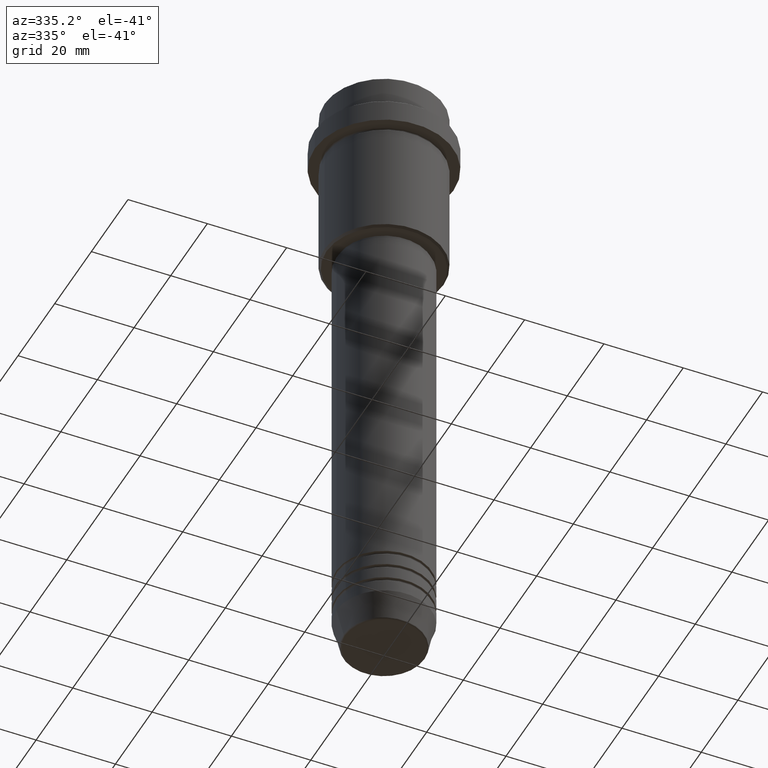
[diagram: clean part render]
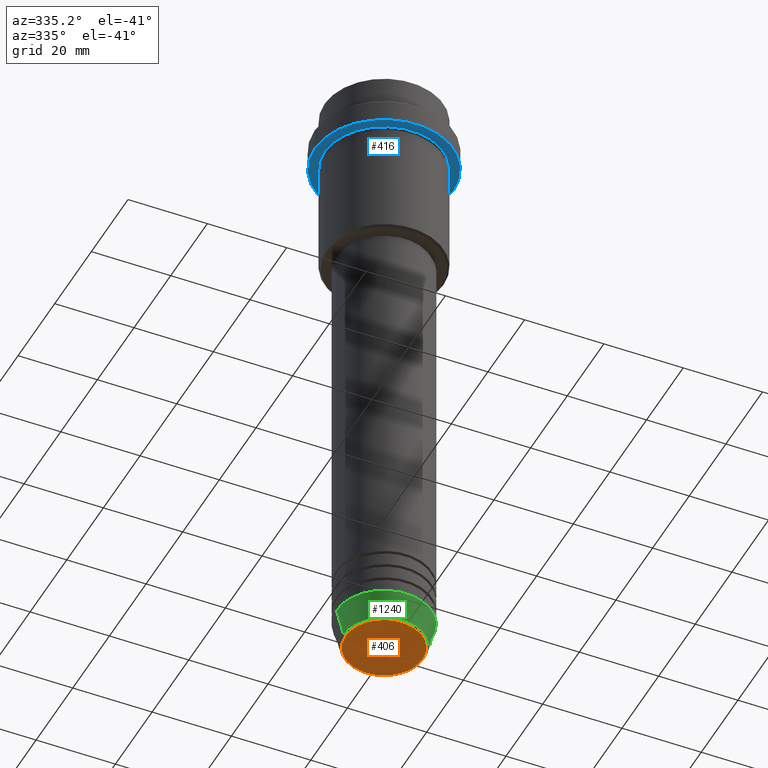
[diagram: same view with three faces highlighted in distinct colors, each labeled with its STEP entity id]
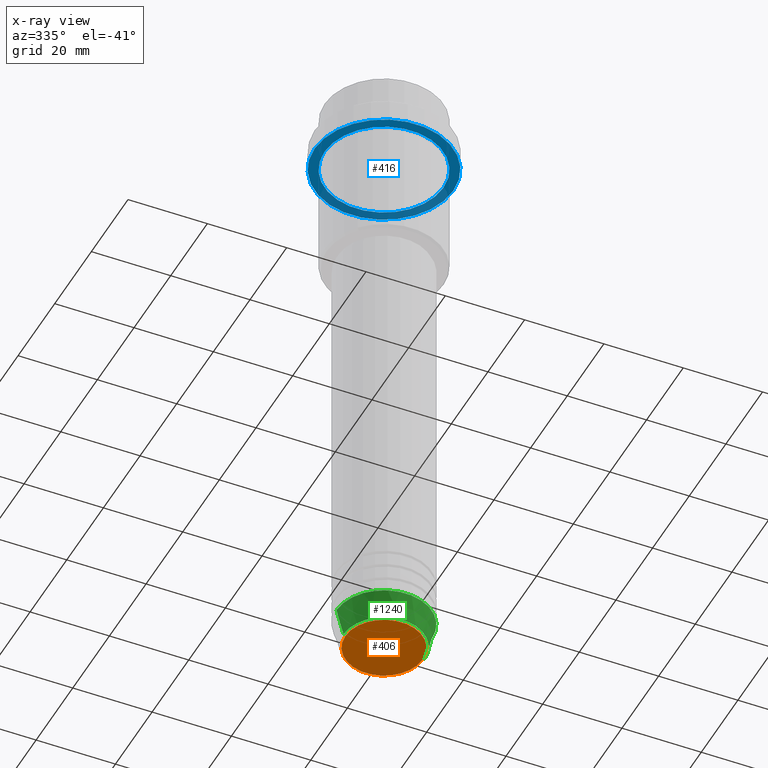
[diagram: x-ray of the same camera — body ghosted, the three highlighted faces saturated]
A machine part, auxiliary view with three faces highlighted in distinct colors.
The next image is the same camera in x-ray (body ghosted, the three faces saturated) — at least one of them is partly hidden behind the body in this view.
Their STEP definitions:

[orange] entity #406 — the highlighted planar face has unit normal (0, -0, 1).
#37 = CARTESIAN_POINT ( 'NONE',  ( 0.000000000000000000, 0.000000000000000000, -159.9999999999999716 ) ) ;
#179 = DIRECTION ( 'NONE',  ( 0.000000000000000000, 0.000000000000000000, -1.000000000000000000 ) ) ;
#216 = CIRCLE ( 'NONE', #981, 9.740692158992667160 ) ;
#226 = EDGE_CURVE ( 'NONE', #707, #400, #216, .T. ) ;
#233 = CARTESIAN_POINT ( 'NONE',  ( 0.000000000000000000, 0.000000000000000000, -159.9999999999999716 ) ) ;
#360 = PLANE ( 'NONE',  #861 ) ;
#400 = VERTEX_POINT ( 'NONE', #589 ) ;
#406 = ADVANCED_FACE ( 'NONE', ( #1345 ), #360, .F. ) ;
#429 = ORIENTED_EDGE ( 'NONE', *, *, #902, .T. ) ;
#524 = DIRECTION ( 'NONE',  ( 1.000000000000000000, 0.000000000000000000, 0.000000000000000000 ) ) ;
#548 = ORIENTED_EDGE ( 'NONE', *, *, #226, .T. ) ;
#569 = EDGE_LOOP ( 'NONE', ( #548, #429 ) ) ;
#575 = DIRECTION ( 'NONE',  ( 1.000000000000000000, 0.000000000000000000, 0.000000000000000000 ) ) ;
#589 = CARTESIAN_POINT ( 'NONE',  ( -9.740692158992667160, 1.222463696683475393E-15, -159.9999999999999716 ) ) ;
#636 = AXIS2_PLACEMENT_3D ( 'NONE', #233, #1216, #575 ) ;
#707 = VERTEX_POINT ( 'NONE', #873 ) ;
#730 = CARTESIAN_POINT ( 'NONE',  ( 0.000000000000000000, 0.000000000000000000, -159.9999999999999716 ) ) ;
#861 = AXIS2_PLACEMENT_3D ( 'NONE', #37, #1025, #1033 ) ;
#873 = CARTESIAN_POINT ( 'NONE',  ( 9.740692158992667160, 0.000000000000000000, -159.9999999999999716 ) ) ;
#902 = EDGE_CURVE ( 'NONE', #400, #707, #935, .T. ) ;
#935 = CIRCLE ( 'NONE', #636, 9.740692158992667160 ) ;
#981 = AXIS2_PLACEMENT_3D ( 'NONE', #730, #179, #524 ) ;
#1025 = DIRECTION ( 'NONE',  ( 0.000000000000000000, -0.000000000000000000, 1.000000000000000000 ) ) ;
#1033 = DIRECTION ( 'NONE',  ( 1.000000000000000000, 0.000000000000000000, 0.000000000000000000 ) ) ;
#1216 = DIRECTION ( 'NONE',  ( 0.000000000000000000, 0.000000000000000000, -1.000000000000000000 ) ) ;
#1345 = FACE_OUTER_BOUND ( 'NONE', #569, .T. ) ;

[blue] entity #416 — the highlighted planar face has unit normal (0, 0, -1).
#14 = CARTESIAN_POINT ( 'NONE',  ( 17.50000000000000000, 0.000000000000000000, -15.00000000000000000 ) ) ;
#16 = DIRECTION ( 'NONE',  ( -1.000000000000000000, 0.000000000000000000, -0.000000000000000000 ) ) ;
#80 = DIRECTION ( 'NONE',  ( -0.000000000000000000, -0.000000000000000000, 1.000000000000000000 ) ) ;
#95 = AXIS2_PLACEMENT_3D ( 'NONE', #314, #80, #507 ) ;
#128 = EDGE_CURVE ( 'NONE', #844, #921, #1266, .T. ) ;
#173 = CARTESIAN_POINT ( 'NONE',  ( -14.99999999999999467, 0.000000000000000000, -15.00000000000000000 ) ) ;
#206 = DIRECTION ( 'NONE',  ( 1.000000000000000000, 0.000000000000000000, 0.000000000000000000 ) ) ;
#221 = CIRCLE ( 'NONE', #839, 14.99999999999999467 ) ;
#236 = CIRCLE ( 'NONE', #95, 14.99999999999999467 ) ;
#245 = ORIENTED_EDGE ( 'NONE', *, *, #128, .F. ) ;
#268 = PLANE ( 'NONE',  #610 ) ;
#270 = DIRECTION ( 'NONE',  ( -1.000000000000000000, 0.000000000000000000, 0.000000000000000000 ) ) ;
#314 = CARTESIAN_POINT ( 'NONE',  ( 0.000000000000000000, 0.000000000000000000, -15.00000000000000000 ) ) ;
#370 = FACE_BOUND ( 'NONE', #582, .T. ) ;
#416 = ADVANCED_FACE ( 'NONE', ( #370, #820 ), #268, .T. ) ;
#460 = EDGE_CURVE ( 'NONE', #1009, #1255, #236, .T. ) ;
#492 = CIRCLE ( 'NONE', #822, 17.50000000000000000 ) ;
#507 = DIRECTION ( 'NONE',  ( -1.000000000000000000, 0.000000000000000000, 0.000000000000000000 ) ) ;
#568 = CARTESIAN_POINT ( 'NONE',  ( -17.50000000000000000, 2.143131898507868248E-15, -15.00000000000000000 ) ) ;
#582 = EDGE_LOOP ( 'NONE', ( #1375, #1339 ) ) ;
#606 = DIRECTION ( 'NONE',  ( -0.000000000000000000, -0.000000000000000000, 1.000000000000000000 ) ) ;
#610 = AXIS2_PLACEMENT_3D ( 'NONE', #1108, #684, #16 ) ;
#684 = DIRECTION ( 'NONE',  ( 0.000000000000000000, 0.000000000000000000, -1.000000000000000000 ) ) ;
#688 = DIRECTION ( 'NONE',  ( 1.000000000000000000, 0.000000000000000000, 0.000000000000000000 ) ) ;
#722 = AXIS2_PLACEMENT_3D ( 'NONE', #968, #876, #206 ) ;
#820 = FACE_OUTER_BOUND ( 'NONE', #1327, .T. ) ;
#822 = AXIS2_PLACEMENT_3D ( 'NONE', #1329, #1319, #688 ) ;
#839 = AXIS2_PLACEMENT_3D ( 'NONE', #1349, #606, #270 ) ;
#844 = VERTEX_POINT ( 'NONE', #14 ) ;
#876 = DIRECTION ( 'NONE',  ( -0.000000000000000000, -0.000000000000000000, 1.000000000000000000 ) ) ;
#921 = VERTEX_POINT ( 'NONE', #568 ) ;
#929 = EDGE_CURVE ( 'NONE', #921, #844, #492, .T. ) ;
#931 = ORIENTED_EDGE ( 'NONE', *, *, #929, .F. ) ;
#968 = CARTESIAN_POINT ( 'NONE',  ( 0.000000000000000000, 0.000000000000000000, -15.00000000000000000 ) ) ;
#1009 = VERTEX_POINT ( 'NONE', #1241 ) ;
#1108 = CARTESIAN_POINT ( 'NONE',  ( 0.000000000000000000, 17.50000000000000000, -15.00000000000000000 ) ) ;
#1113 = EDGE_CURVE ( 'NONE', #1255, #1009, #221, .T. ) ;
#1241 = CARTESIAN_POINT ( 'NONE',  ( 14.99999999999999467, 1.836970198721029194E-15, -15.00000000000000000 ) ) ;
#1255 = VERTEX_POINT ( 'NONE', #173 ) ;
#1266 = CIRCLE ( 'NONE', #722, 17.50000000000000000 ) ;
#1319 = DIRECTION ( 'NONE',  ( -0.000000000000000000, -0.000000000000000000, 1.000000000000000000 ) ) ;
#1327 = EDGE_LOOP ( 'NONE', ( #245, #931 ) ) ;
#1329 = CARTESIAN_POINT ( 'NONE',  ( 0.000000000000000000, 0.000000000000000000, -15.00000000000000000 ) ) ;
#1339 = ORIENTED_EDGE ( 'NONE', *, *, #460, .T. ) ;
#1349 = CARTESIAN_POINT ( 'NONE',  ( 0.000000000000000000, 0.000000000000000000, -15.00000000000000000 ) ) ;
#1375 = ORIENTED_EDGE ( 'NONE', *, *, #1113, .T. ) ;

[green] entity #1240 — the highlighted conical surface has half-angle 15 deg.
#111 = CARTESIAN_POINT ( 'NONE',  ( -12.00000000000000000, 1.469576158976823947E-15, -153.0000000000000000 ) ) ;
#134 = DIRECTION ( 'NONE',  ( 1.000000000000000000, 0.000000000000000000, 0.000000000000000000 ) ) ;
#145 = ORIENTED_EDGE ( 'NONE', *, *, #1168, .F. ) ;
#161 = DIRECTION ( 'NONE',  ( 1.000000000000000000, 0.000000000000000000, 0.000000000000000000 ) ) ;
#284 = CIRCLE ( 'NONE', #774, 10.22365507213719660 ) ;
#290 = CARTESIAN_POINT ( 'NONE',  ( 0.000000000000000000, 0.000000000000000000, -153.0000000000000000 ) ) ;
#341 = EDGE_CURVE ( 'NONE', #602, #559, #1245, .T. ) ;
#351 = EDGE_LOOP ( 'NONE', ( #145, #432, #1148, #1013 ) ) ;
#358 = CARTESIAN_POINT ( 'NONE',  ( 0.000000000000000000, 0.000000000000000000, -159.6294095225512422 ) ) ;
#390 = DIRECTION ( 'NONE',  ( -0.000000000000000000, -0.000000000000000000, 1.000000000000000000 ) ) ;
#401 = CONICAL_SURFACE ( 'NONE', #639, 12.00000000000000000, 0.2617993877991500740 ) ;
#432 = ORIENTED_EDGE ( 'NONE', *, *, #1060, .T. ) ;
#499 = CARTESIAN_POINT ( 'NONE',  ( 12.00000000000000000, 0.000000000000000000, -153.0000000000000000 ) ) ;
#535 = LINE ( 'NONE', #1056, #1297 ) ;
#559 = VERTEX_POINT ( 'NONE', #499 ) ;
#593 = VECTOR ( 'NONE', #1373, 1000.000000000000000 ) ;
#602 = VERTEX_POINT ( 'NONE', #111 ) ;
#639 = AXIS2_PLACEMENT_3D ( 'NONE', #290, #390, #651 ) ;
#644 = CARTESIAN_POINT ( 'NONE',  ( -10.22365507213719837, 1.360806402472383336E-15, -159.6294095225512422 ) ) ;
#651 = DIRECTION ( 'NONE',  ( 1.000000000000000000, 0.000000000000000000, 0.000000000000000000 ) ) ;
#715 = CARTESIAN_POINT ( 'NONE',  ( 0.000000000000000000, 0.000000000000000000, -153.0000000000000000 ) ) ;
#732 = CARTESIAN_POINT ( 'NONE',  ( -12.00000000000000000, 1.469576158976823947E-15, -153.0000000000000000 ) ) ;
#751 = FACE_OUTER_BOUND ( 'NONE', #351, .T. ) ;
#774 = AXIS2_PLACEMENT_3D ( 'NONE', #358, #1136, #134 ) ;
#866 = LINE ( 'NONE', #732, #593 ) ;
#877 = DIRECTION ( 'NONE',  ( 0.2588190451025213501, 0.000000000000000000, 0.9659258262890680902 ) ) ;
#880 = VERTEX_POINT ( 'NONE', #901 ) ;
#901 = CARTESIAN_POINT ( 'NONE',  ( 10.22365507213719660, 0.000000000000000000, -159.6294095225512422 ) ) ;
#998 = AXIS2_PLACEMENT_3D ( 'NONE', #715, #1151, #161 ) ;
#1013 = ORIENTED_EDGE ( 'NONE', *, *, #341, .F. ) ;
#1056 = CARTESIAN_POINT ( 'NONE',  ( 12.00000000000000000, 0.000000000000000000, -153.0000000000000000 ) ) ;
#1060 = EDGE_CURVE ( 'NONE', #1270, #880, #284, .T. ) ;
#1136 = DIRECTION ( 'NONE',  ( -0.000000000000000000, -0.000000000000000000, 1.000000000000000000 ) ) ;
#1148 = ORIENTED_EDGE ( 'NONE', *, *, #1292, .T. ) ;
#1151 = DIRECTION ( 'NONE',  ( -0.000000000000000000, -0.000000000000000000, 1.000000000000000000 ) ) ;
#1168 = EDGE_CURVE ( 'NONE', #1270, #602, #866, .T. ) ;
#1240 = ADVANCED_FACE ( 'NONE', ( #751 ), #401, .T. ) ;
#1245 = CIRCLE ( 'NONE', #998, 12.00000000000000000 ) ;
#1270 = VERTEX_POINT ( 'NONE', #644 ) ;
#1292 = EDGE_CURVE ( 'NONE', #880, #559, #535, .T. ) ;
#1297 = VECTOR ( 'NONE', #877, 1000.000000000000000 ) ;
#1373 = DIRECTION ( 'NONE',  ( -0.2588190451025213501, 3.169619151431772337E-17, 0.9659258262890680902 ) ) ;